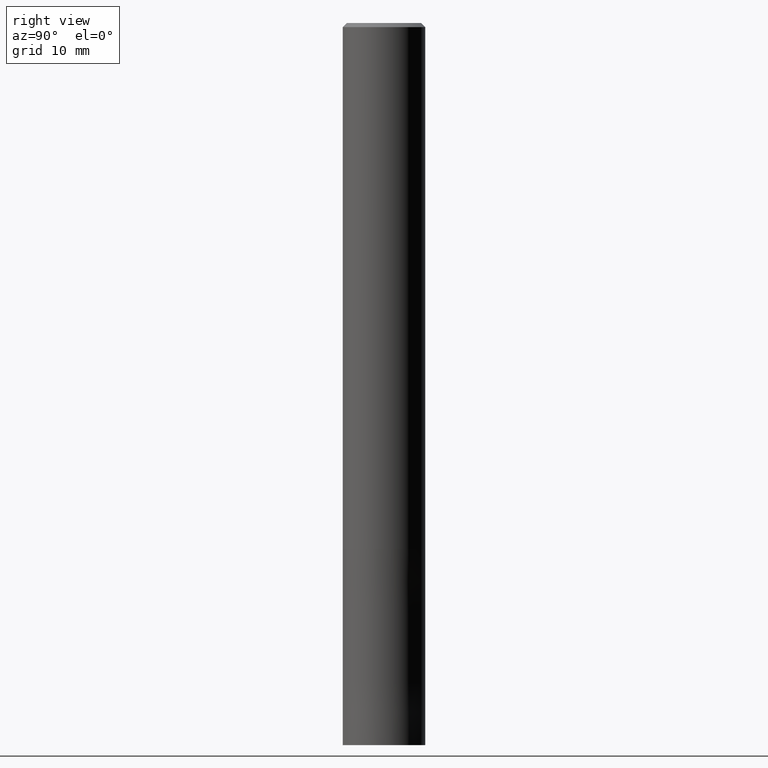
[diagram: clean part render]
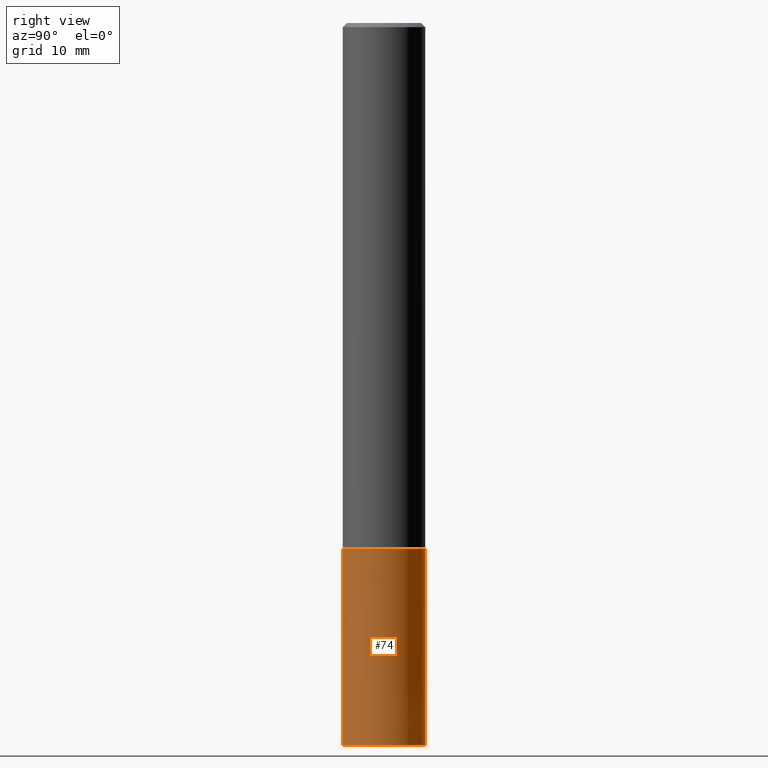
[diagram: same view with one face highlighted and labeled with its STEP entity id]
A machine part, right view. The second image highlights one B-rep face of the part: STEP entity #74.
In plain terms, the highlighted conical surface has half-angle 0 deg.
Its self-contained STEP definition (entity closure, byte-faithful):
#60=VERTEX_POINT('',#148);
#74=ADVANCED_FACE('',(#163),#164,.T.);
#84=EDGE_CURVE('',#102,#88,#175,.T.);
#86=EDGE_CURVE('',#114,#60,#177,.T.);
#88=VERTEX_POINT('',#179);
#102=VERTEX_POINT('',#195);
#108=EDGE_CURVE('',#102,#114,#202,.T.);
#114=VERTEX_POINT('',#211);
#120=EDGE_CURVE('',#60,#88,#218,.T.);
#148=CARTESIAN_POINT('',(4.89842541528951E-016,-4.0,-70.0));
#163=FACE_OUTER_BOUND('',#254,.T.);
#164=CONICAL_SURFACE('',#255,3.99995,5.26315789469935E-006);
#175=CIRCLE('',#271,3.9999);
#177=CIRCLE('',#274,4.0);
#179=CARTESIAN_POINT('',(4.89830295465413E-016,-3.9999,-51.0));
#195=CARTESIAN_POINT('',(0.0,3.9999,-51.0));
#202=LINE('',#304,#305);
#211=CARTESIAN_POINT('',(0.0,4.0,-70.0));
#218=LINE('',#322,#323);
#254=EDGE_LOOP('',(#352,#353,#354,#355));
#255=AXIS2_PLACEMENT_3D('',#356,#357,#358);
#271=AXIS2_PLACEMENT_3D('',#374,#375,#376);
#274=AXIS2_PLACEMENT_3D('',#377,#378,#379);
#304=CARTESIAN_POINT('',(-4.89836418497182E-016,3.99995,-60.5));
#305=VECTOR('',#409,1.0);
#322=CARTESIAN_POINT('',(4.89836418497182E-016,-3.99995,-60.5));
#323=VECTOR('',#432,1.0);
#352=ORIENTED_EDGE('',*,*,#108,.F.);
#353=ORIENTED_EDGE('',*,*,#84,.T.);
#354=ORIENTED_EDGE('',*,*,#120,.F.);
#355=ORIENTED_EDGE('',*,*,#86,.F.);
#356=CARTESIAN_POINT('',(0.0,0.0,-60.5));
#357=DIRECTION('',(0.0,-0.0,-1.0));
#358=DIRECTION('',(0.0,1.0,0.0));
#374=CARTESIAN_POINT('',(0.0,0.0,-51.0));
#375=DIRECTION('',(0.0,0.0,-1.0));
#376=DIRECTION('',(0.0,1.0,0.0));
#377=CARTESIAN_POINT('',(0.0,0.0,-70.0));
#378=DIRECTION('',(0.0,0.0,-1.0));
#379=DIRECTION('',(0.0,1.0,0.0));
#409=DIRECTION('',(-6.44529659898948E-022,5.26315789467505E-006,-0.99999999998615));
#432=DIRECTION('',(-6.44529659898947E-022,5.26315789467505E-006,0.99999999998615));